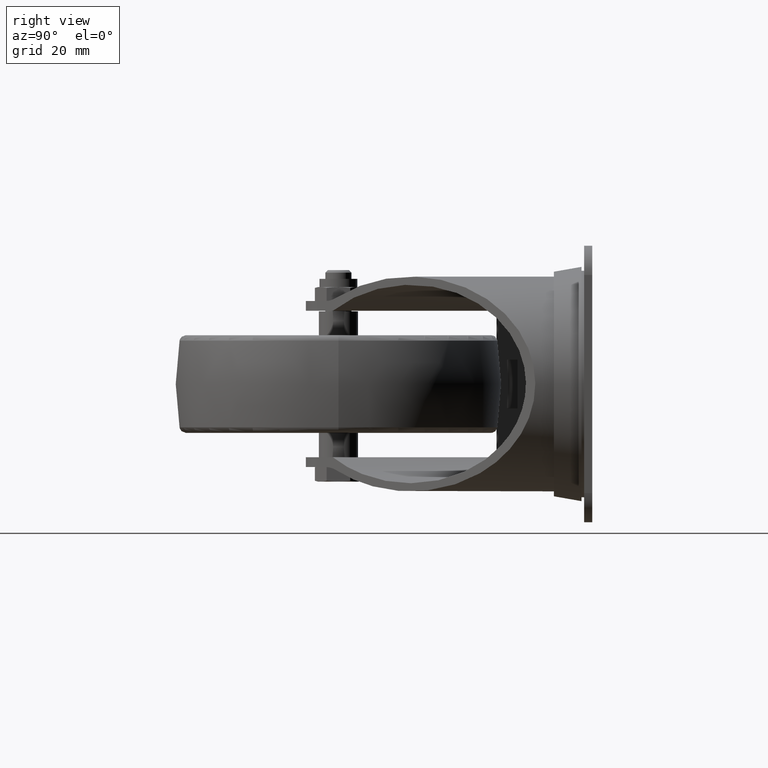
[diagram: clean part render]
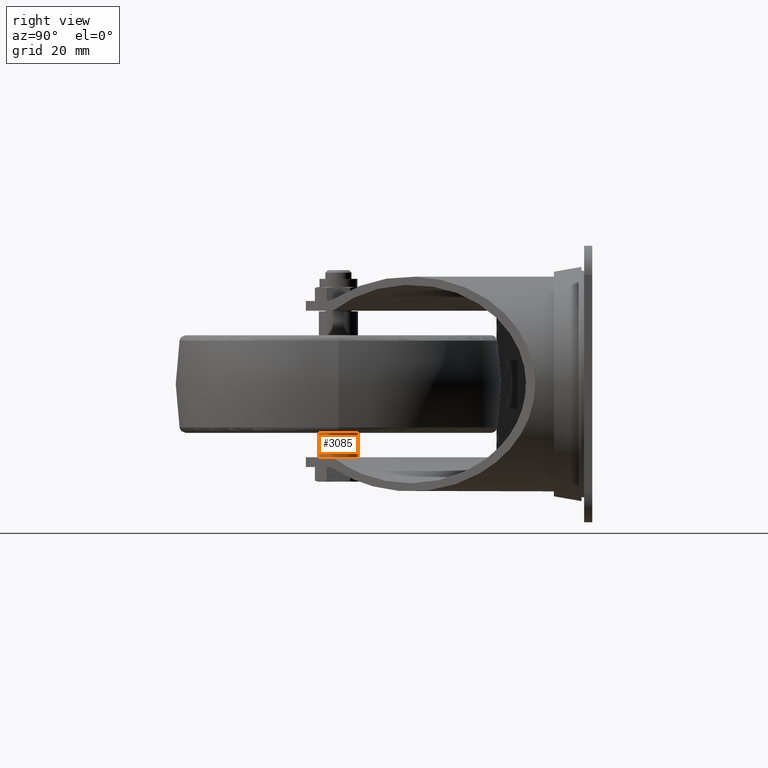
[diagram: same view with one face highlighted and labeled with its STEP entity id]
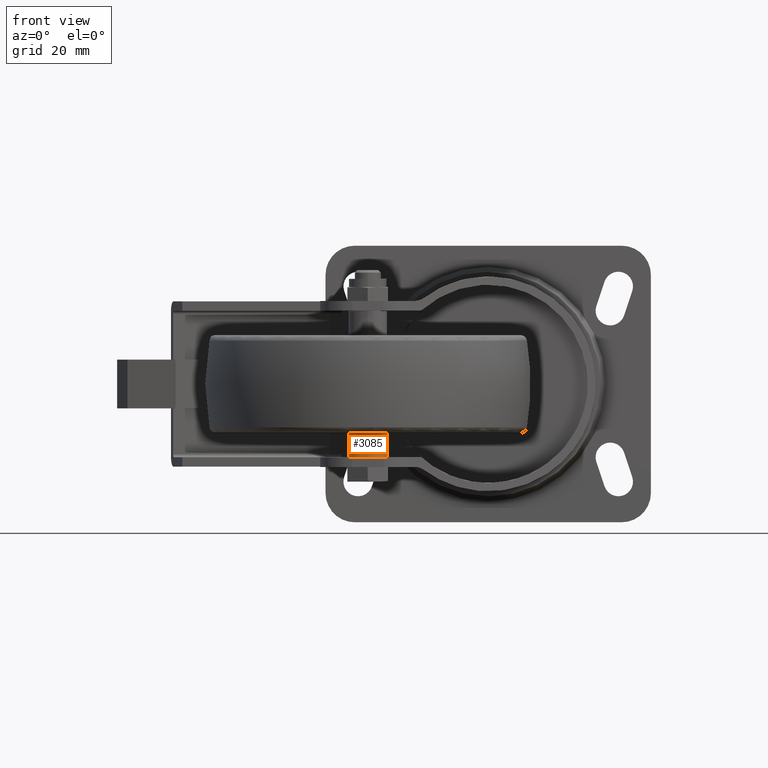
[diagram: same view with one face highlighted and labeled with its STEP entity id]
A machine part, right view. The second image highlights one B-rep face of the part: STEP entity #3085.
A second angle (front view) of the same face is appended — the face is thin or edge-on in the first view.
In plain terms, the highlighted cylindrical surface (bore or boss wall) has radius 6 mm, axis along (0, 0, 1).
Its self-contained STEP definition (entity closure, byte-faithful):
#154=CYLINDRICAL_SURFACE('',#3391,6.);
#306=FACE_OUTER_BOUND('',#499,.T.);
#499=EDGE_LOOP('',(#2480,#2481,#2482,#2483));
#568=CIRCLE('',#3170,6.);
#669=CIRCLE('',#3392,6.);
#926=LINE('',#5339,#1133);
#1133=VECTOR('',#4158,6.);
#1161=VERTEX_POINT('',#4441);
#1370=VERTEX_POINT('',#5337);
#1437=EDGE_CURVE('',#1161,#1161,#568,.T.);
#1754=EDGE_CURVE('',#1370,#1370,#669,.T.);
#1755=EDGE_CURVE('',#1370,#1161,#926,.T.);
#2480=ORIENTED_EDGE('',*,*,#1754,.T.);
#2481=ORIENTED_EDGE('',*,*,#1755,.T.);
#2482=ORIENTED_EDGE('',*,*,#1437,.T.);
#2483=ORIENTED_EDGE('',*,*,#1755,.F.);
#3085=ADVANCED_FACE('',(#306),#154,.T.);
#3170=AXIS2_PLACEMENT_3D('',#4442,#3531,#3532);
#3391=AXIS2_PLACEMENT_3D('',#5336,#4154,#4155);
#3392=AXIS2_PLACEMENT_3D('',#5338,#4156,#4157);
#3531=DIRECTION('center_axis',(0.,0.,1.));
#3532=DIRECTION('ref_axis',(0.,1.,0.));
#4154=DIRECTION('center_axis',(0.,0.,1.));
#4155=DIRECTION('ref_axis',(0.,1.,0.));
#4156=DIRECTION('center_axis',(0.,0.,-1.));
#4157=DIRECTION('ref_axis',(1.,0.,0.));
#4158=DIRECTION('',(0.,0.,-1.));
#4441=CARTESIAN_POINT('',(7.34763812293426E-16,-6.,-22.5));
#4442=CARTESIAN_POINT('Origin',(0.,0.,-22.5));
#5336=CARTESIAN_POINT('Origin',(0.,0.,-0.200000000000003));
#5337=CARTESIAN_POINT('',(7.34788079488412E-16,-6.,-15.));
#5338=CARTESIAN_POINT('Origin',(0.,0.,-15.));
#5339=CARTESIAN_POINT('',(7.34788079488412E-16,-6.,-0.200000000000003));